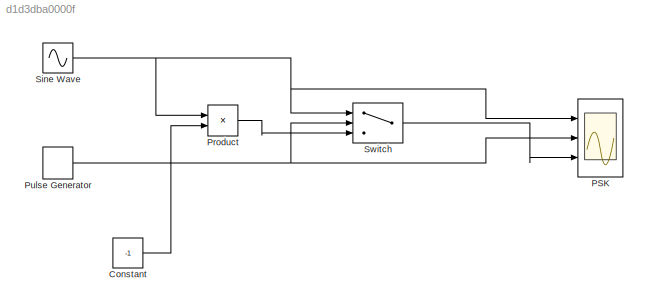
MODEL slx_d1d3dba0000f
KIND model
BLOCK [Constant] Constant
  Value = -1
BLOCK [Scope] PSK
  Floating = off
  LimitDataPoints = off
  NumInputPorts = 3
  Ports = [3]
  ShowLegends = off
  YMax = 5~5~5
  YMin = -5~-5~-5
BLOCK [Product] Product
  InputSameDT = off
  OutDataTypeStr = Inherit: Inherit via internal rule
  Ports = [2, 1]
  RndMeth = Floor
  SaturateOnIntegerOverflow = off
BLOCK [DiscretePulseGenerator] Pulse Generator
  Amplitude = 3
  Ports = [0, 1]
  PulseType = Time based
  PulseWidth = 50
BLOCK [Sin] Sine Wave
  Amplitude = 3
  Frequency = 2*pi*2
  Ports = [0, 1]
  SampleTime = 0.01
BLOCK [Switch] Switch
  Criteria = u2 > Threshold
  InputSameDT = off
  SaturateOnIntegerOverflow = off
  Threshold = 0.5
LINE Constant:1 -> Product:2
LINE Product:1 -> Switch:3
NET Pulse Generator:1 -> PSK:2, Switch:2
NET Sine Wave:1 -> PSK:1, Product:1, Switch:1
LINE Switch:1 -> PSK:3
note: NET lines group one-source signal fan-out (src -> all destinations, sorted); 1:1 wires keep LINE
